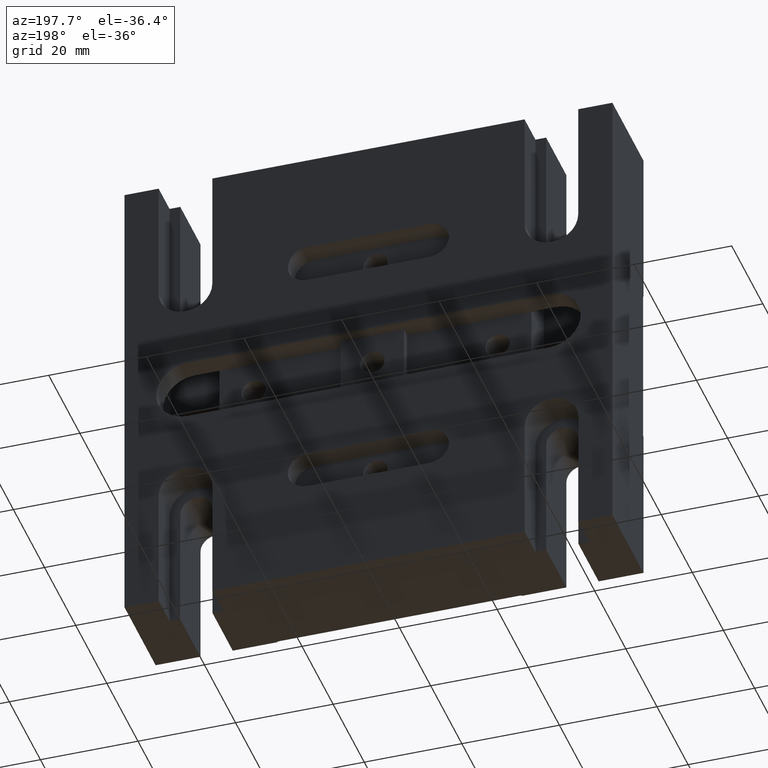
[diagram: clean part render]
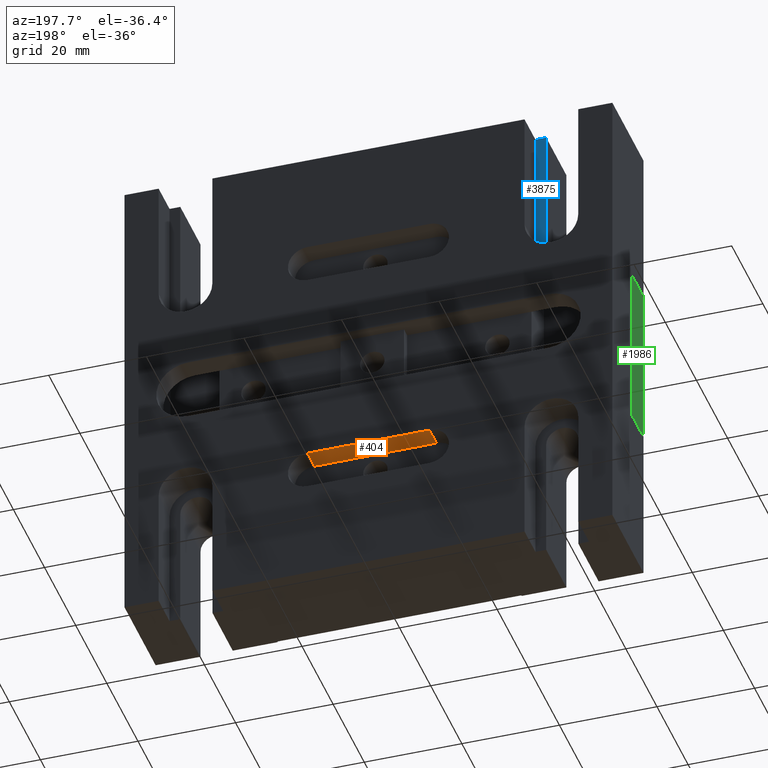
[diagram: same view with three faces highlighted in distinct colors, each labeled with its STEP entity id]
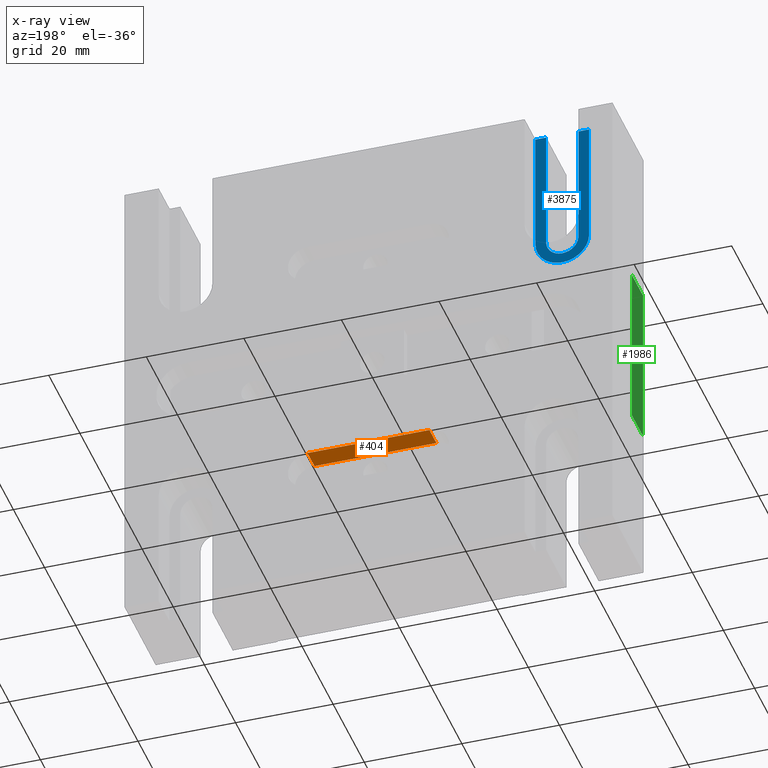
[diagram: x-ray of the same camera — body ghosted, the three highlighted faces saturated]
A machine part, auxiliary view with three faces highlighted in distinct colors.
The next image is the same camera in x-ray (body ghosted, the three faces saturated) — at least one of them is partly hidden behind the body in this view.
Their STEP definitions:

[orange] entity #404 — the highlighted planar face has unit normal (0, 0, 1).
#37 = DIRECTION ( 'NONE',  ( -2.218897729836139900E-047, -1.000000000000000000, 2.965575351820868600E-032 ) ) ;
#68 = VECTOR ( 'NONE', #3968, 1000.000000000000000 ) ;
#174 = CARTESIAN_POINT ( 'NONE',  ( -12.50000000000000200, 20.00000000000000000, -20.99999999999998900 ) ) ;
#206 = LINE ( 'NONE', #2124, #1187 ) ;
#254 = CARTESIAN_POINT ( 'NONE',  ( 114.6877546344880600, 20.00000000000000000, -21.00000000000005300 ) ) ;
#330 = CARTESIAN_POINT ( 'NONE',  ( -12.50000000000000200, 15.50000000000000400, -20.99999999999998900 ) ) ;
#389 = EDGE_CURVE ( 'NONE', #4230, #848, #497, .T. ) ;
#404 = ADVANCED_FACE ( 'NONE', ( #4678 ), #5216, .F. ) ;
#414 = CARTESIAN_POINT ( 'NONE',  ( 12.49999999999999300, 20.00000000000000000, -20.99999999999999600 ) ) ;
#497 = LINE ( 'NONE', #174, #4755 ) ;
#501 = EDGE_CURVE ( 'NONE', #848, #3960, #1259, .T. ) ;
#632 = DIRECTION ( 'NONE',  ( -2.218897729836139900E-047, -1.000000000000000000, 2.965575351820868600E-032 ) ) ;
#848 = VERTEX_POINT ( 'NONE', #330 ) ;
#936 = CARTESIAN_POINT ( 'NONE',  ( 12.49999999999999300, 20.00000000000000000, -20.99999999999999600 ) ) ;
#1187 = VECTOR ( 'NONE', #1272, 1000.000000000000000 ) ;
#1259 = LINE ( 'NONE', #2109, #68 ) ;
#1272 = DIRECTION ( 'NONE',  ( -1.000000000000000000, -1.489756994175525100E-047, 5.379111376652652700E-016 ) ) ;
#2008 = DIRECTION ( 'NONE',  ( 5.379111376652652700E-016, 2.730512921981286600E-032, 1.000000000000000000 ) ) ;
#2109 = CARTESIAN_POINT ( 'NONE',  ( 114.6877546344880600, 15.50000000000000400, -21.00000000000005300 ) ) ;
#2124 = CARTESIAN_POINT ( 'NONE',  ( 114.6877546344880600, 20.00000000000000000, -21.00000000000005300 ) ) ;
#2305 = EDGE_CURVE ( 'NONE', #2316, #3960, #3456, .T. ) ;
#2316 = VERTEX_POINT ( 'NONE', #414 ) ;
#2482 = DIRECTION ( 'NONE',  ( -1.000000000000000000, -1.489756994175525100E-047, 5.379111376652652700E-016 ) ) ;
#2499 = ORIENTED_EDGE ( 'NONE', *, *, #3074, .F. ) ;
#3074 = EDGE_CURVE ( 'NONE', #2316, #4230, #206, .T. ) ;
#3232 = CARTESIAN_POINT ( 'NONE',  ( -12.49999999999999500, 20.00000000000000000, -20.99999999999998200 ) ) ;
#3456 = LINE ( 'NONE', #936, #4295 ) ;
#3501 = ORIENTED_EDGE ( 'NONE', *, *, #2305, .T. ) ;
#3607 = ORIENTED_EDGE ( 'NONE', *, *, #389, .F. ) ;
#3960 = VERTEX_POINT ( 'NONE', #5119 ) ;
#3968 = DIRECTION ( 'NONE',  ( 1.000000000000000000, 1.489756994175525100E-047, -5.379111376652652700E-016 ) ) ;
#4230 = VERTEX_POINT ( 'NONE', #3232 ) ;
#4295 = VECTOR ( 'NONE', #37, 1000.000000000000000 ) ;
#4569 = ORIENTED_EDGE ( 'NONE', *, *, #501, .F. ) ;
#4678 = FACE_OUTER_BOUND ( 'NONE', #5035, .T. ) ;
#4755 = VECTOR ( 'NONE', #632, 1000.000000000000000 ) ;
#4957 = AXIS2_PLACEMENT_3D ( 'NONE', #254, #2008, #2482 ) ;
#5035 = EDGE_LOOP ( 'NONE', ( #4569, #3607, #2499, #3501 ) ) ;
#5119 = CARTESIAN_POINT ( 'NONE',  ( 12.49999999999999300, 15.50000000000000400, -20.99999999999999600 ) ) ;
#5216 = PLANE ( 'NONE',  #4957 ) ;

[blue] entity #3875 — the highlighted planar face has unit normal (-0, -1, 0).
#55 = CARTESIAN_POINT ( 'NONE',  ( -31.99999999999998600, 13.00000000000000200, 50.00000000000001400 ) ) ;
#122 = VERTEX_POINT ( 'NONE', #2579 ) ;
#245 = VECTOR ( 'NONE', #3914, 1000.000000000000000 ) ;
#309 = EDGE_LOOP ( 'NONE', ( #2897, #5174, #3778, #673, #4246, #3458, #5536, #2179, #3776, #2099 ) ) ;
#535 = DIRECTION ( 'NONE',  ( 2.218897729836139900E-047, 1.000000000000000000, -2.965575351820868600E-032 ) ) ;
#571 = EDGE_CURVE ( 'NONE', #4793, #4082, #774, .T. ) ;
#624 = CARTESIAN_POINT ( 'NONE',  ( -37.49999999999999300, 13.00000000000000200, 24.50000000000001400 ) ) ;
#655 = DIRECTION ( 'NONE',  ( 0.0000000000000000000, 0.0000000000000000000, -1.000000000000000000 ) ) ;
#673 = ORIENTED_EDGE ( 'NONE', *, *, #2558, .F. ) ;
#774 = LINE ( 'NONE', #1810, #3580 ) ;
#959 = EDGE_CURVE ( 'NONE', #3557, #5581, #3947, .T. ) ;
#1036 = EDGE_CURVE ( 'NONE', #4709, #4731, #2408, .T. ) ;
#1237 = EDGE_CURVE ( 'NONE', #4731, #122, #1911, .T. ) ;
#1250 = CARTESIAN_POINT ( 'NONE',  ( -40.79999999999999000, 13.00000000000000200, 24.50000000000001800 ) ) ;
#1279 = DIRECTION ( 'NONE',  ( 0.0000000000000000000, 0.0000000000000000000, -1.000000000000000000 ) ) ;
#1289 = CARTESIAN_POINT ( 'NONE',  ( -40.79999999999998300, 13.00000000000000200, 50.00000000000002100 ) ) ;
#1325 = AXIS2_PLACEMENT_3D ( 'NONE', #5635, #2381, #3324 ) ;
#1332 = CIRCLE ( 'NONE', #2883, 3.299999999999997200 ) ;
#1389 = VECTOR ( 'NONE', #2688, 1000.000000000000000 ) ;
#1411 = CARTESIAN_POINT ( 'NONE',  ( -34.19999999999998900, 13.00000000000000200, 50.00000000000001400 ) ) ;
#1424 = VECTOR ( 'NONE', #1709, 1000.000000000000000 ) ;
#1453 = DIRECTION ( 'NONE',  ( 0.0000000000000000000, 0.0000000000000000000, -1.000000000000000000 ) ) ;
#1671 = CARTESIAN_POINT ( 'NONE',  ( -42.99999999999998600, 13.00000000000000200, 50.00000000000002100 ) ) ;
#1681 = EDGE_CURVE ( 'NONE', #122, #2702, #5048, .T. ) ;
#1709 = DIRECTION ( 'NONE',  ( 2.612385134603822900E-016, 2.730512921981286600E-032, 1.000000000000000000 ) ) ;
#1745 = VERTEX_POINT ( 'NONE', #3983 ) ;
#1792 = DIRECTION ( 'NONE',  ( -2.612385134603822900E-016, -2.730512921981286600E-032, -1.000000000000000000 ) ) ;
#1810 = CARTESIAN_POINT ( 'NONE',  ( -34.19999999999998900, 13.00000000000000200, 50.00000000000001400 ) ) ;
#1901 = AXIS2_PLACEMENT_3D ( 'NONE', #4152, #3678, #4593 ) ;
#1911 = CIRCLE ( 'NONE', #1325, 5.499999999999994700 ) ;
#2099 = ORIENTED_EDGE ( 'NONE', *, *, #5105, .T. ) ;
#2131 = AXIS2_PLACEMENT_3D ( 'NONE', #624, #2910, #655 ) ;
#2179 = ORIENTED_EDGE ( 'NONE', *, *, #1237, .T. ) ;
#2202 = AXIS2_PLACEMENT_3D ( 'NONE', #4922, #3572, #1279 ) ;
#2263 = CARTESIAN_POINT ( 'NONE',  ( -42.99999999999998600, 13.00000000000000200, 50.00000000000002100 ) ) ;
#2381 = DIRECTION ( 'NONE',  ( 2.218897729836139900E-047, 1.000000000000000000, -2.965575351820868600E-032 ) ) ;
#2408 = LINE ( 'NONE', #4027, #2684 ) ;
#2447 = EDGE_CURVE ( 'NONE', #1745, #3557, #1332, .T. ) ;
#2558 = EDGE_CURVE ( 'NONE', #4082, #1745, #2960, .T. ) ;
#2579 = CARTESIAN_POINT ( 'NONE',  ( -37.49999999999999300, 13.00000000000000200, 19.00000000000002100 ) ) ;
#2684 = VECTOR ( 'NONE', #3214, 1000.000000000000000 ) ;
#2688 = DIRECTION ( 'NONE',  ( 1.000000000000000000, 2.245215169725430400E-047, -2.612385134603822900E-016 ) ) ;
#2702 = VERTEX_POINT ( 'NONE', #3614 ) ;
#2883 = AXIS2_PLACEMENT_3D ( 'NONE', #4129, #535, #1453 ) ;
#2897 = ORIENTED_EDGE ( 'NONE', *, *, #4872, .T. ) ;
#2910 = DIRECTION ( 'NONE',  ( 2.218897729836139900E-047, 1.000000000000000000, -2.965575351820868600E-032 ) ) ;
#2960 = CIRCLE ( 'NONE', #2131, 3.299999999999997200 ) ;
#3214 = DIRECTION ( 'NONE',  ( -2.612385134603822900E-016, -2.730512921981286600E-032, -1.000000000000000000 ) ) ;
#3281 = EDGE_CURVE ( 'NONE', #4793, #4709, #4195, .T. ) ;
#3324 = DIRECTION ( 'NONE',  ( 0.0000000000000000000, 0.0000000000000000000, -1.000000000000000000 ) ) ;
#3458 = ORIENTED_EDGE ( 'NONE', *, *, #3281, .T. ) ;
#3557 = VERTEX_POINT ( 'NONE', #1250 ) ;
#3572 = DIRECTION ( 'NONE',  ( 2.218897729836139900E-047, 1.000000000000000000, -2.965575351820868600E-032 ) ) ;
#3580 = VECTOR ( 'NONE', #1792, 1000.000000000000000 ) ;
#3593 = CARTESIAN_POINT ( 'NONE',  ( -42.99999999999998600, 13.00000000000000200, 50.00000000000002100 ) ) ;
#3614 = CARTESIAN_POINT ( 'NONE',  ( -42.99999999999999300, 13.00000000000000200, 24.50000000000001400 ) ) ;
#3624 = CARTESIAN_POINT ( 'NONE',  ( -31.99999999999999300, 13.00000000000000200, 24.50000000000001400 ) ) ;
#3670 = FACE_OUTER_BOUND ( 'NONE', #309, .T. ) ;
#3678 = DIRECTION ( 'NONE',  ( -2.280305089577817700E-047, -1.000000000000000000, 2.730512921981286600E-032 ) ) ;
#3776 = ORIENTED_EDGE ( 'NONE', *, *, #1681, .T. ) ;
#3778 = ORIENTED_EDGE ( 'NONE', *, *, #2447, .F. ) ;
#3875 = ADVANCED_FACE ( 'NONE', ( #3670 ), #5479, .F. ) ;
#3914 = DIRECTION ( 'NONE',  ( 2.612385134603822900E-016, 2.730512921981286600E-032, 1.000000000000000000 ) ) ;
#3947 = LINE ( 'NONE', #4374, #1424 ) ;
#3983 = CARTESIAN_POINT ( 'NONE',  ( -37.49999999999999300, 13.00000000000000200, 21.20000000000001700 ) ) ;
#4027 = CARTESIAN_POINT ( 'NONE',  ( -31.99999999999998600, 13.00000000000000200, 50.00000000000001400 ) ) ;
#4061 = CARTESIAN_POINT ( 'NONE',  ( -34.19999999999999600, 13.00000000000000200, 24.50000000000001800 ) ) ;
#4082 = VERTEX_POINT ( 'NONE', #4061 ) ;
#4110 = DIRECTION ( 'NONE',  ( 1.000000000000000000, 2.245215169725430400E-047, -2.612385134603822900E-016 ) ) ;
#4129 = CARTESIAN_POINT ( 'NONE',  ( -37.49999999999999300, 13.00000000000000200, 24.50000000000001400 ) ) ;
#4152 = CARTESIAN_POINT ( 'NONE',  ( -37.49999999999999300, 13.00000000000000200, 27.80000000000001100 ) ) ;
#4195 = LINE ( 'NONE', #2263, #1389 ) ;
#4231 = VECTOR ( 'NONE', #4110, 1000.000000000000000 ) ;
#4246 = ORIENTED_EDGE ( 'NONE', *, *, #571, .F. ) ;
#4374 = CARTESIAN_POINT ( 'NONE',  ( -40.79999999999998300, 13.00000000000000200, 50.00000000000002100 ) ) ;
#4445 = LINE ( 'NONE', #4579, #4231 ) ;
#4579 = CARTESIAN_POINT ( 'NONE',  ( -42.99999999999998600, 13.00000000000000200, 50.00000000000002100 ) ) ;
#4593 = DIRECTION ( 'NONE',  ( 2.612385134603822900E-016, 2.730512921981286600E-032, 1.000000000000000000 ) ) ;
#4709 = VERTEX_POINT ( 'NONE', #55 ) ;
#4731 = VERTEX_POINT ( 'NONE', #3624 ) ;
#4793 = VERTEX_POINT ( 'NONE', #1411 ) ;
#4872 = EDGE_CURVE ( 'NONE', #5291, #5581, #4445, .T. ) ;
#4922 = CARTESIAN_POINT ( 'NONE',  ( -37.49999999999999300, 13.00000000000000200, 24.50000000000001400 ) ) ;
#5048 = CIRCLE ( 'NONE', #2202, 5.499999999999994700 ) ;
#5105 = EDGE_CURVE ( 'NONE', #2702, #5291, #5206, .T. ) ;
#5174 = ORIENTED_EDGE ( 'NONE', *, *, #959, .F. ) ;
#5206 = LINE ( 'NONE', #1671, #245 ) ;
#5291 = VERTEX_POINT ( 'NONE', #3593 ) ;
#5479 = PLANE ( 'NONE',  #1901 ) ;
#5536 = ORIENTED_EDGE ( 'NONE', *, *, #1036, .T. ) ;
#5581 = VERTEX_POINT ( 'NONE', #1289 ) ;
#5635 = CARTESIAN_POINT ( 'NONE',  ( -37.49999999999999300, 13.00000000000000200, 24.50000000000001400 ) ) ;

[green] entity #1986 — the highlighted planar face has unit normal (-1, 0, 0).
#637 = LINE ( 'NONE', #1043, #3586 ) ;
#897 = EDGE_LOOP ( 'NONE', ( #4310, #3664, #3577, #978 ) ) ;
#907 = EDGE_CURVE ( 'NONE', #1238, #2434, #5681, .T. ) ;
#978 = ORIENTED_EDGE ( 'NONE', *, *, #4542, .T. ) ;
#1043 = CARTESIAN_POINT ( 'NONE',  ( -49.99999999999999300, 0.2000000000000092500, -17.00000000000002800 ) ) ;
#1060 = DIRECTION ( 'NONE',  ( -3.265457502030387700E-016, -4.793599080482059100E-032, -1.000000000000000000 ) ) ;
#1238 = VERTEX_POINT ( 'NONE', #2346 ) ;
#1305 = CARTESIAN_POINT ( 'NONE',  ( -49.99999999999999300, 0.2000000000000092500, -17.00000000000002800 ) ) ;
#1491 = VECTOR ( 'NONE', #3490, 1000.000000000000000 ) ;
#1788 = VECTOR ( 'NONE', #5654, 1000.000000000000000 ) ;
#1824 = DIRECTION ( 'NONE',  ( -3.265457502030387700E-016, -4.793599080482059100E-032, -1.000000000000000000 ) ) ;
#1842 = CARTESIAN_POINT ( 'NONE',  ( -49.99999999999998600, 0.2000000000000092500, 16.99999999999997500 ) ) ;
#1986 = ADVANCED_FACE ( 'NONE', ( #4073 ), #5055, .T. ) ;
#2346 = CARTESIAN_POINT ( 'NONE',  ( -49.99999999999998600, 7.500000000000008900, 16.99999999999997500 ) ) ;
#2434 = VERTEX_POINT ( 'NONE', #1842 ) ;
#2711 = CARTESIAN_POINT ( 'NONE',  ( -49.99999999999999300, 7.500000000000008900, -17.00000000000002800 ) ) ;
#2757 = DIRECTION ( 'NONE',  ( -3.265457502030387700E-016, -4.793599080482059100E-032, -1.000000000000000000 ) ) ;
#2896 = EDGE_CURVE ( 'NONE', #2434, #3657, #637, .T. ) ;
#3186 = CARTESIAN_POINT ( 'NONE',  ( -49.99999999999999300, 7.500000000000008900, -17.00000000000002800 ) ) ;
#3302 = EDGE_CURVE ( 'NONE', #1238, #4771, #3441, .T. ) ;
#3441 = LINE ( 'NONE', #2711, #4058 ) ;
#3483 = LINE ( 'NONE', #4327, #1788 ) ;
#3490 = DIRECTION ( 'NONE',  ( -1.224606353822376800E-016, -1.000000000000000000, 2.033791836650749900E-032 ) ) ;
#3577 = ORIENTED_EDGE ( 'NONE', *, *, #3302, .T. ) ;
#3586 = VECTOR ( 'NONE', #2757, 1000.000000000000000 ) ;
#3657 = VERTEX_POINT ( 'NONE', #1305 ) ;
#3664 = ORIENTED_EDGE ( 'NONE', *, *, #907, .F. ) ;
#3742 = DIRECTION ( 'NONE',  ( -1.000000000000000000, 1.224606353822378500E-016, 3.265457502030387700E-016 ) ) ;
#3926 = CARTESIAN_POINT ( 'NONE',  ( -49.99999999999998600, 7.500000000000008900, 16.99999999999997500 ) ) ;
#4058 = VECTOR ( 'NONE', #1824, 1000.000000000000000 ) ;
#4073 = FACE_OUTER_BOUND ( 'NONE', #897, .T. ) ;
#4310 = ORIENTED_EDGE ( 'NONE', *, *, #2896, .F. ) ;
#4327 = CARTESIAN_POINT ( 'NONE',  ( -49.99999999999999300, 7.500000000000008900, -17.00000000000002800 ) ) ;
#4542 = EDGE_CURVE ( 'NONE', #4771, #3657, #3483, .T. ) ;
#4638 = CARTESIAN_POINT ( 'NONE',  ( -49.99999999999999300, 7.500000000000008900, -17.00000000000002800 ) ) ;
#4771 = VERTEX_POINT ( 'NONE', #3186 ) ;
#5055 = PLANE ( 'NONE',  #5659 ) ;
#5654 = DIRECTION ( 'NONE',  ( -1.224606353822376800E-016, -1.000000000000000000, 2.033791836650749900E-032 ) ) ;
#5659 = AXIS2_PLACEMENT_3D ( 'NONE', #4638, #3742, #1060 ) ;
#5681 = LINE ( 'NONE', #3926, #1491 ) ;